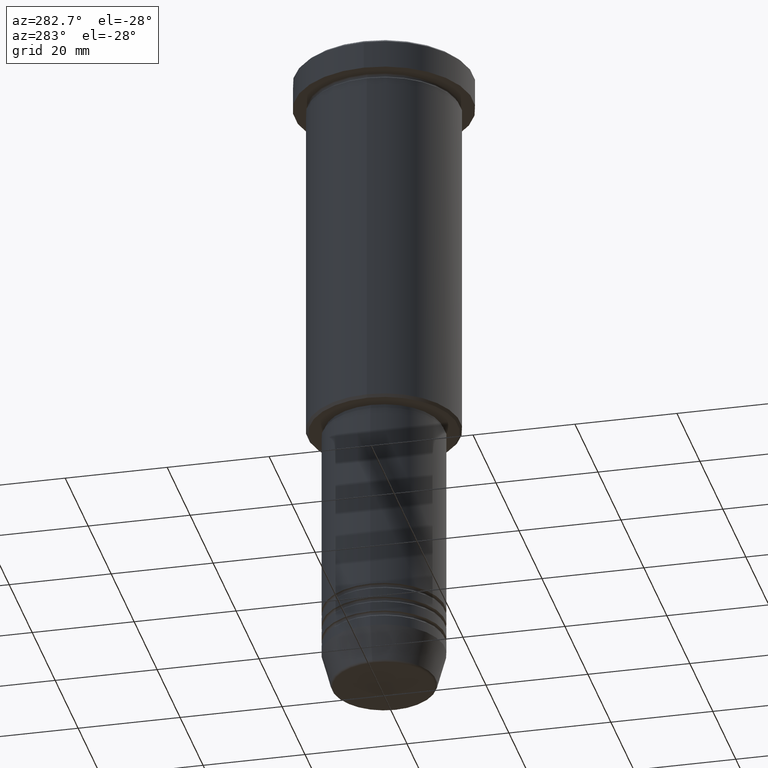
[diagram: clean part render]
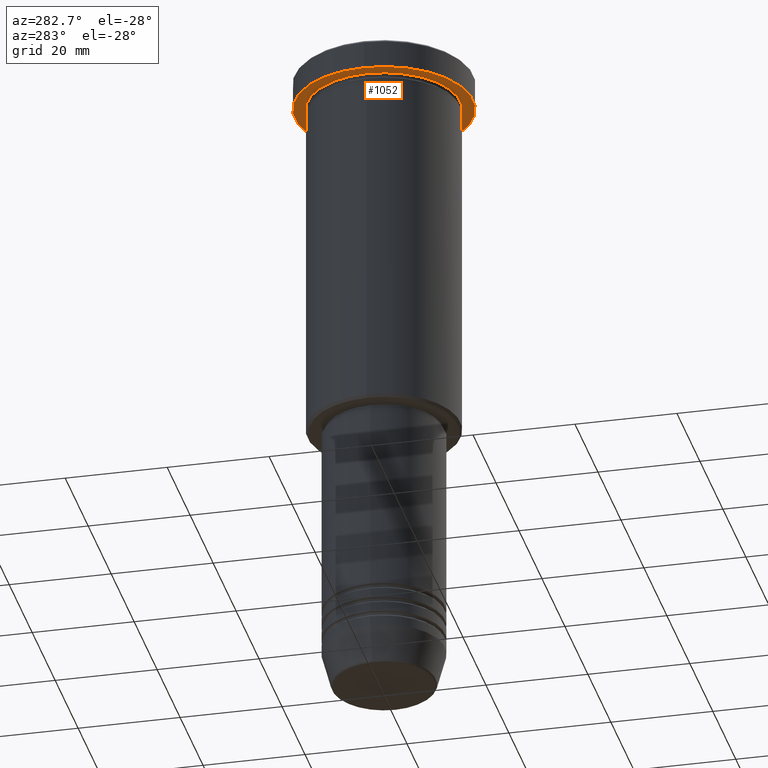
[diagram: same view with one face highlighted and labeled with its STEP entity id]
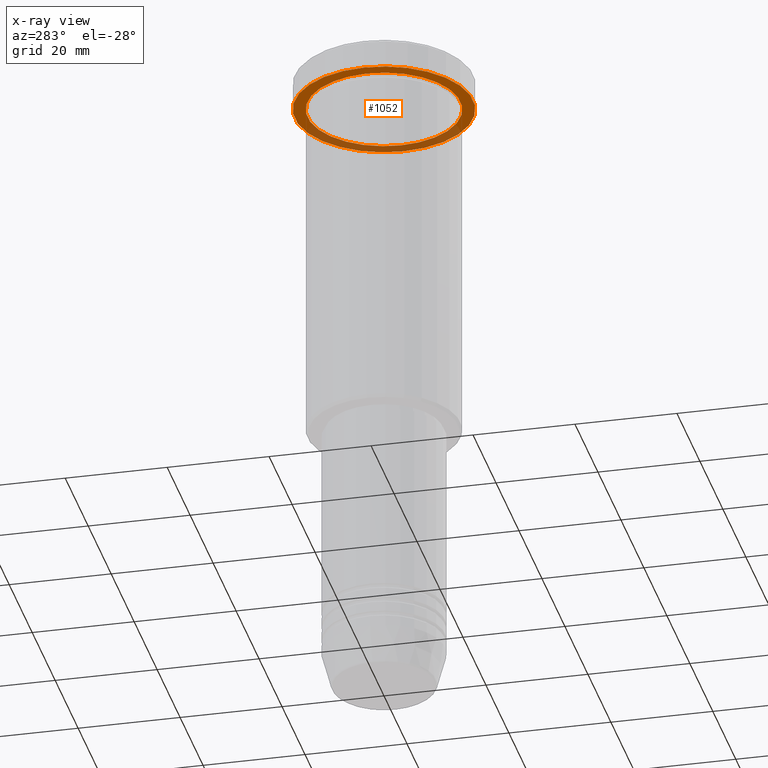
[diagram: x-ray of the same camera — body ghosted, the highlighted face saturated]
A machine part, auxiliary view. The second image highlights one B-rep face of the part: STEP entity #1052.
The next image is the same camera in x-ray: the body ghosted, the highlighted face saturated — about 34% of this face is hidden behind the body in this view.
In plain terms, the highlighted planar face has unit normal (0, 0, -1).
Its self-contained STEP definition (entity closure, byte-faithful):
#28 = FACE_OUTER_BOUND ( 'NONE', #522, .T. ) ;
#38 = CARTESIAN_POINT ( 'NONE',  ( 15.00000000000000000, 1.836970198721029589E-15, -5.999999999999994671 ) ) ;
#89 = EDGE_CURVE ( 'NONE', #135, #1084, #361, .T. ) ;
#135 = VERTEX_POINT ( 'NONE', #488 ) ;
#136 = DIRECTION ( 'NONE',  ( -1.000000000000000000, 0.000000000000000000, 0.000000000000000000 ) ) ;
#145 = DIRECTION ( 'NONE',  ( -0.000000000000000000, -0.000000000000000000, 1.000000000000000000 ) ) ;
#172 = VERTEX_POINT ( 'NONE', #38 ) ;
#235 = DIRECTION ( 'NONE',  ( -1.000000000000000000, 0.000000000000000000, 0.000000000000000000 ) ) ;
#245 = DIRECTION ( 'NONE',  ( -0.000000000000000000, -0.000000000000000000, 1.000000000000000000 ) ) ;
#253 = DIRECTION ( 'NONE',  ( 1.000000000000000000, 0.000000000000000000, 0.000000000000000000 ) ) ;
#263 = DIRECTION ( 'NONE',  ( -0.000000000000000000, -0.000000000000000000, 1.000000000000000000 ) ) ;
#302 = AXIS2_PLACEMENT_3D ( 'NONE', #1121, #831, #742 ) ;
#323 = EDGE_LOOP ( 'NONE', ( #394, #420 ) ) ;
#325 = EDGE_CURVE ( 'NONE', #1084, #135, #527, .T. ) ;
#330 = EDGE_CURVE ( 'NONE', #172, #445, #491, .T. ) ;
#361 = CIRCLE ( 'NONE', #662, 17.50000000000000000 ) ;
#394 = ORIENTED_EDGE ( 'NONE', *, *, #1160, .T. ) ;
#420 = ORIENTED_EDGE ( 'NONE', *, *, #330, .T. ) ;
#438 = CARTESIAN_POINT ( 'NONE',  ( 0.000000000000000000, 0.000000000000000000, -5.999999999999995559 ) ) ;
#444 = CARTESIAN_POINT ( 'NONE',  ( -15.00000000000000000, 0.000000000000000000, -5.999999999999994671 ) ) ;
#445 = VERTEX_POINT ( 'NONE', #444 ) ;
#471 = CARTESIAN_POINT ( 'NONE',  ( 0.000000000000000000, 0.000000000000000000, -5.999999999999995559 ) ) ;
#474 = AXIS2_PLACEMENT_3D ( 'NONE', #438, #245, #235 ) ;
#488 = CARTESIAN_POINT ( 'NONE',  ( -17.50000000000000000, 2.143131898507868248E-15, -5.999999999999995559 ) ) ;
#491 = CIRCLE ( 'NONE', #474, 15.00000000000000000 ) ;
#522 = EDGE_LOOP ( 'NONE', ( #843, #631 ) ) ;
#527 = CIRCLE ( 'NONE', #997, 17.50000000000000000 ) ;
#631 = ORIENTED_EDGE ( 'NONE', *, *, #89, .F. ) ;
#662 = AXIS2_PLACEMENT_3D ( 'NONE', #471, #263, #679 ) ;
#679 = DIRECTION ( 'NONE',  ( 1.000000000000000000, 0.000000000000000000, 0.000000000000000000 ) ) ;
#742 = DIRECTION ( 'NONE',  ( -1.000000000000000000, 0.000000000000000000, -0.000000000000000000 ) ) ;
#754 = CARTESIAN_POINT ( 'NONE',  ( 17.50000000000000000, 0.000000000000000000, -5.999999999999995559 ) ) ;
#776 = CARTESIAN_POINT ( 'NONE',  ( 0.000000000000000000, 0.000000000000000000, -5.999999999999995559 ) ) ;
#831 = DIRECTION ( 'NONE',  ( 0.000000000000000000, 0.000000000000000000, -1.000000000000000000 ) ) ;
#843 = ORIENTED_EDGE ( 'NONE', *, *, #325, .F. ) ;
#936 = PLANE ( 'NONE',  #302 ) ;
#964 = CARTESIAN_POINT ( 'NONE',  ( 0.000000000000000000, 0.000000000000000000, -5.999999999999995559 ) ) ;
#997 = AXIS2_PLACEMENT_3D ( 'NONE', #776, #145, #253 ) ;
#1002 = FACE_BOUND ( 'NONE', #323, .T. ) ;
#1052 = ADVANCED_FACE ( 'NONE', ( #1002, #28 ), #936, .T. ) ;
#1073 = CIRCLE ( 'NONE', #1090, 15.00000000000000000 ) ;
#1084 = VERTEX_POINT ( 'NONE', #754 ) ;
#1090 = AXIS2_PLACEMENT_3D ( 'NONE', #964, #1145, #136 ) ;
#1121 = CARTESIAN_POINT ( 'NONE',  ( 0.000000000000000000, 17.50000000000000000, -5.999999999999995559 ) ) ;
#1145 = DIRECTION ( 'NONE',  ( -0.000000000000000000, -0.000000000000000000, 1.000000000000000000 ) ) ;
#1160 = EDGE_CURVE ( 'NONE', #445, #172, #1073, .T. ) ;